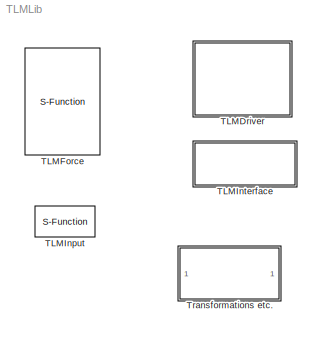
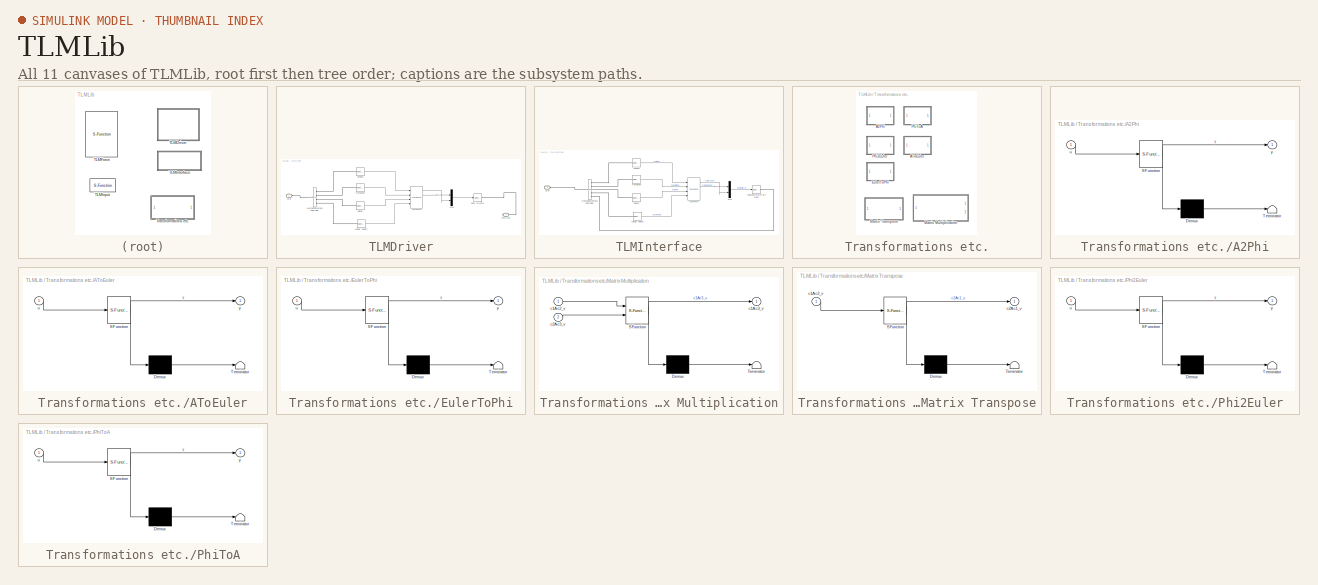
[diagram: thumbnail index - all 11 canvases of the model, root first then tree order]
MODEL TLMLib
KIND library
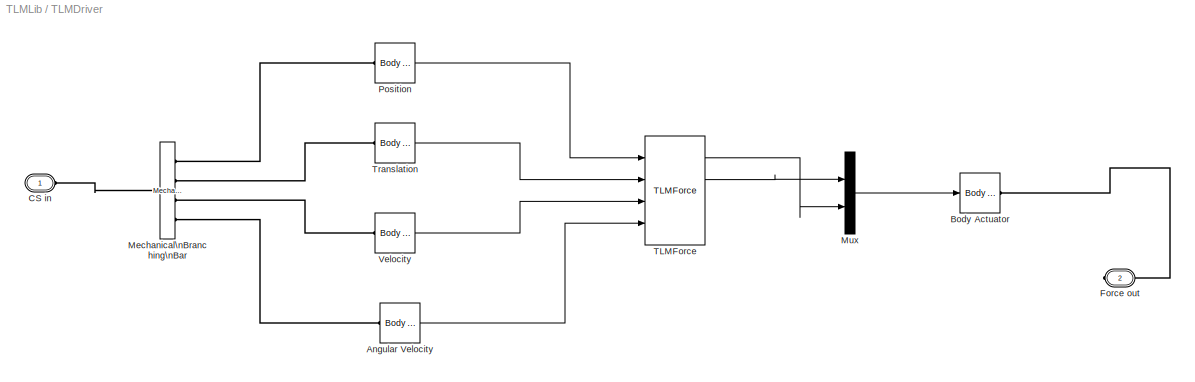
BLOCK [SubSystem] TLMDriver
  Ports = [0, 0, 0, 0, 0, 1, 1]
  RequestExecContextInheritance = off
  SID = 1
  Variant = off
BLOCK [Reference] TLMDriver/Angular Velocity  REF=mblibv1/Sensors & \nActuators/Body Sensor
  Acceleration = off
  AccelerationUnits = m/s^2
  ActiveIO = off
  Angle = on
  AngleUnits = deg
  ArcAcceleration = off
  ArcAccelerationUnits = deg/s^2
  ArcVelocity = on
  ArcVelocityUnits = rad/s
  ClassName = BodySensor
  CoordPosition = off
  CoordPositionUnits = m
  DialogClass = MechanicalSensorBlock
  FunctionWithSeparateData = off
  Muxed = on
  OutputVector = [1]
  PhysicalDomain = Mechanical
  PortType = blob
  Ports = [0, 1, 0, 0, 0, 1]
  Pose = off
  Quaternion = on
  QuaternionDDT = off
  QuaternionDT = off
  QuaternionUnits = off
  RTWMemSecDataConstants = Inherit from model
  RTWMemSecDataInternal = Inherit from model
  RTWMemSecDataParameters = Inherit from model
  RTWMemSecFuncExecute = Inherit from model
  RTWMemSecFuncInitTerm = Inherit from model
  ReferenceFrame = Absolute (World)
  SID = 2
  ShowPortLabels = on
  SourceBlock = mblibv1/Sensors & \nActuators/Body Sensor
  SourceType = msb
  SystemSampleTime = -1
  Velocity = off
  VelocityUnits = m/s
  Width = 1
BLOCK [Reference] TLMDriver/Body Actuator  REF=mblibv1/Sensors & \nActuators/Body Actuator
  AccelerationUnits = m/s^2
  ActiveIO = off
  ActuationStyle = Force
  Angle = off
  AngleUnits = deg
  ArcAccelerationUnits = deg/s^2
  ArcVelocityUnits = deg/s
  ClassName = BodyActuatorForceTorque
  CoordPosition = on
  CoordPositionUnits = m
  DialogClass = MechanicalActuatorBlock
  Force = on
  ForceUnits = N
  FunctionWithSeparateData = off
  PhysicalDomain = Mechanical
  PortType = blob
  Ports = [1, 0, 0, 0, 0, 0, 1]
  RTWMemSecDataConstants = Inherit from model
  RTWMemSecDataInternal = Inherit from model
  RTWMemSecDataParameters = Inherit from model
  RTWMemSecFuncExecute = Inherit from model
  RTWMemSecFuncInitTerm = Inherit from model
  ReferenceFrame = Absolute (World)
  SID = 3
  ShowPortLabels = on
  SourceBlock = mblibv1/Sensors & \nActuators/Body Actuator
  SourceType = msb
  SystemSampleTime = -1
  Torque = on
  TorqueUnits = N*m
  VelocityUnits = m/s
  Width = 1
BLOCK [PMIOPort] TLMDriver/CS in
  Port = 1
  SID = 10
  Side = Left
  Tag = PMCPort
BLOCK [PMIOPort] TLMDriver/Force out
  Port = 2
  SID = 11
  Side = Right
  Tag = PMCPort
BLOCK [Reference] TLMDriver/Mechanical\nBranching\nBar  REF=mblibv1/Utilities/Mechanical\nBranching\nBar
  ClassName = BranchingBar
  DialogClass = MechanicalBranchingBarBlock
  LConnTagsString = _newl0
  LeftPortType = blob
  NumSAPorts = 4
  PhysicalDomain = mechanical
  Ports = [0, 0, 0, 0, 0, 1, 4]
  RConnTagsString = __newr0|SA2|SA3|SA4
  RightPortType = blob
  SID = 4
  SourceBlock = mblibv1/Utilities/Mechanical\nBranching\nBar
  SourceType = msb
  SubClassName = Unknown
BLOCK [Mux] TLMDriver/Mux
  DisplayOption = bar
  Inputs = [3 3]
  Ports = [2, 1]
  SID = 5
BLOCK [Reference] TLMDriver/Position  REF=mblibv1/Sensors & \nActuators/Body Sensor
  Acceleration = off
  AccelerationUnits = m/s^2
  ActiveIO = off
  Angle = on
  AngleUnits = deg
  ArcAcceleration = off
  ArcAccelerationUnits = deg/s^2
  ArcVelocity = off
  ArcVelocityUnits = deg/s
  ClassName = BodySensor
  CoordPosition = on
  CoordPositionUnits = m
  DialogClass = MechanicalSensorBlock
  FunctionWithSeparateData = off
  Muxed = on
  OutputVector = [1]
  PhysicalDomain = Mechanical
  PortType = blob
  Ports = [0, 1, 0, 0, 0, 1]
  Pose = off
  Quaternion = on
  QuaternionDDT = off
  QuaternionDT = off
  QuaternionUnits = off
  RTWMemSecDataConstants = Inherit from model
  RTWMemSecDataInternal = Inherit from model
  RTWMemSecDataParameters = Inherit from model
  RTWMemSecFuncExecute = Inherit from model
  RTWMemSecFuncInitTerm = Inherit from model
  ReferenceFrame = Absolute (World)
  SID = 6
  ShowPortLabels = on
  SourceBlock = mblibv1/Sensors & \nActuators/Body Sensor
  SourceType = msb
  SystemSampleTime = -1
  Velocity = off
  VelocityUnits = m/s
  Width = 1
BLOCK [Reference] TLMDriver/TLMForce  REF=TLMLib/TLMForce
  Ports = [4, 4]
  SID = 7
  SourceBlock = TLMLib/TLMForce
  SourceType = TLMForceInterface
BLOCK [Reference] TLMDriver/Translation  REF=mblibv1/Sensors & \nActuators/Body Sensor
  Acceleration = off
  AccelerationUnits = m/s^2
  ActiveIO = off
  Angle = on
  AngleUnits = deg
  ArcAcceleration = off
  ArcAccelerationUnits = deg/s^2
  ArcVelocity = off
  ArcVelocityUnits = deg/s
  ClassName = BodySensor
  CoordPosition = off
  CoordPositionUnits = m
  DialogClass = MechanicalSensorBlock
  FunctionWithSeparateData = off
  Muxed = on
  OutputVector = [1]
  PhysicalDomain = Mechanical
  PortType = blob
  Ports = [0, 1, 0, 0, 0, 1]
  Pose = on
  Quaternion = on
  QuaternionDDT = off
  QuaternionDT = off
  QuaternionUnits = off
  RTWMemSecDataConstants = Inherit from model
  RTWMemSecDataInternal = Inherit from model
  RTWMemSecDataParameters = Inherit from model
  RTWMemSecFuncExecute = Inherit from model
  RTWMemSecFuncInitTerm = Inherit from model
  ReferenceFrame = Absolute (World)
  SID = 8
  ShowPortLabels = on
  SourceBlock = mblibv1/Sensors & \nActuators/Body Sensor
  SourceType = msb
  SystemSampleTime = -1
  Velocity = off
  VelocityUnits = m/s
  Width = 1
BLOCK [Reference] TLMDriver/Velocity  REF=mblibv1/Sensors & \nActuators/Body Sensor
  Acceleration = off
  AccelerationUnits = m/s^2
  ActiveIO = off
  Angle = on
  AngleUnits = deg
  ArcAcceleration = off
  ArcAccelerationUnits = deg/s^2
  ArcVelocity = off
  ArcVelocityUnits = deg/s
  ClassName = BodySensor
  CoordPosition = off
  CoordPositionUnits = m
  DialogClass = MechanicalSensorBlock
  FunctionWithSeparateData = off
  Muxed = on
  OutputVector = [1]
  PhysicalDomain = Mechanical
  PortType = blob
  Ports = [0, 1, 0, 0, 0, 1]
  Pose = off
  Quaternion = on
  QuaternionDDT = off
  QuaternionDT = off
  QuaternionUnits = off
  RTWMemSecDataConstants = Inherit from model
  RTWMemSecDataInternal = Inherit from model
  RTWMemSecDataParameters = Inherit from model
  RTWMemSecFuncExecute = Inherit from model
  RTWMemSecFuncInitTerm = Inherit from model
  ReferenceFrame = Absolute (World)
  SID = 9
  ShowPortLabels = on
  SourceBlock = mblibv1/Sensors & \nActuators/Body Sensor
  SourceType = msb
  SystemSampleTime = -1
  Velocity = on
  VelocityUnits = m/s
  Width = 1
BLOCK [S-Function] TLMForce
  EnableBusSupport = off
  FunctionName = tlmforce
  Ports = [4, 4]
  SFcnIsStateOwnerBlock = off
  SFunctionDeploymentMode = off
  SID = 12
BLOCK [S-Function] TLMInput
  EnableBusSupport = off
  FunctionName = tlmsignal
  Ports = [2, 2]
  SFcnIsStateOwnerBlock = off
  SFunctionDeploymentMode = off
  SID = 32
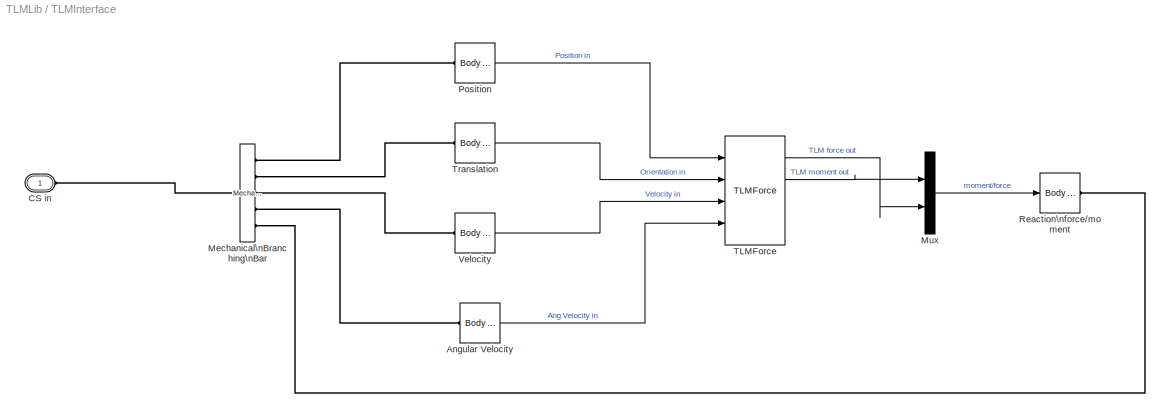
BLOCK [SubSystem] TLMInterface
  Ports = [0, 0, 0, 0, 0, 1]
  RequestExecContextInheritance = off
  SID = 13
  Variant = off
BLOCK [Reference] TLMInterface/Angular Velocity  REF=mblibv1/Sensors & \nActuators/Body Sensor
  Acceleration = off
  AccelerationUnits = m/s^2
  ActiveIO = off
  Angle = on
  AngleUnits = deg
  ArcAcceleration = off
  ArcAccelerationUnits = deg/s^2
  ArcVelocity = on
  ArcVelocityUnits = rad/s
  ClassName = BodySensor
  CoordPosition = off
  CoordPositionUnits = m
  DialogClass = MechanicalSensorBlock
  FunctionWithSeparateData = off
  Muxed = on
  OutputVector = [1]
  PhysicalDomain = Mechanical
  PortType = blob
  Ports = [0, 1, 0, 0, 0, 1]
  Pose = off
  Quaternion = on
  QuaternionDDT = off
  QuaternionDT = off
  QuaternionUnits = off
  RTWMemSecDataConstants = Inherit from model
  RTWMemSecDataInternal = Inherit from model
  RTWMemSecDataParameters = Inherit from model
  RTWMemSecFuncExecute = Inherit from model
  RTWMemSecFuncInitTerm = Inherit from model
  ReferenceFrame = Absolute (World)
  SID = 14
  ShowPortLabels = on
  SourceBlock = mblibv1/Sensors & \nActuators/Body Sensor
  SourceType = msb
  SystemSampleTime = -1
  Velocity = off
  VelocityUnits = m/s
  Width = 1
BLOCK [PMIOPort] TLMInterface/CS in
  Port = 1
  SID = 22
  Side = Left
  Tag = PMCPort
BLOCK [Reference] TLMInterface/Mechanical\nBranching\nBar  REF=mblibv1/Utilities/Mechanical\nBranching\nBar
  ClassName = BranchingBar
  DialogClass = MechanicalBranchingBarBlock
  LConnTagsString = _newl0
  LeftPortType = blob
  NumSAPorts = 5
  PhysicalDomain = mechanical
  Ports = [0, 0, 0, 0, 0, 1, 5]
  RConnTagsString = __newr0|SA2|SA3|SA4|SA5
  RightPortType = blob
  SID = 15
  SourceBlock = mblibv1/Utilities/Mechanical\nBranching\nBar
  SourceType = msb
  SubClassName = Unknown
BLOCK [Mux] TLMInterface/Mux
  DisplayOption = bar
  Inputs = [3 3]
  Ports = [2, 1]
  SID = 16
BLOCK [Reference] TLMInterface/Position  REF=mblibv1/Sensors & \nActuators/Body Sensor
  Acceleration = off
  AccelerationUnits = m/s^2
  ActiveIO = off
  Angle = on
  AngleUnits = deg
  ArcAcceleration = off
  ArcAccelerationUnits = deg/s^2
  ArcVelocity = off
  ArcVelocityUnits = deg/s
  ClassName = BodySensor
  CoordPosition = on
  CoordPositionUnits = m
  DialogClass = MechanicalSensorBlock
  FunctionWithSeparateData = off
  Muxed = on
  OutputVector = [1]
  PhysicalDomain = Mechanical
  PortType = blob
  Ports = [0, 1, 0, 0, 0, 1]
  Pose = off
  Quaternion = on
  QuaternionDDT = off
  QuaternionDT = off
  QuaternionUnits = off
  RTWMemSecDataConstants = Inherit from model
  RTWMemSecDataInternal = Inherit from model
  RTWMemSecDataParameters = Inherit from model
  RTWMemSecFuncExecute = Inherit from model
  RTWMemSecFuncInitTerm = Inherit from model
  ReferenceFrame = Absolute (World)
  SID = 17
  ShowPortLabels = on
  SourceBlock = mblibv1/Sensors & \nActuators/Body Sensor
  SourceType = msb
  SystemSampleTime = -1
  Velocity = off
  VelocityUnits = m/s
  Width = 1
BLOCK [Reference] TLMInterface/Reaction\nforce//moment  REF=mblibv1/Sensors & \nActuators/Body Actuator
  AccelerationUnits = m/s^2
  ActiveIO = off
  ActuationStyle = Force
  Angle = off
  AngleUnits = deg
  ArcAccelerationUnits = deg/s^2
  ArcVelocityUnits = deg/s
  ClassName = BodyActuatorForceTorque
  CoordPosition = on
  CoordPositionUnits = m
  DialogClass = MechanicalActuatorBlock
  Force = on
  ForceUnits = N
  FunctionWithSeparateData = off
  PhysicalDomain = Mechanical
  PortType = blob
  Ports = [1, 0, 0, 0, 0, 0, 1]
  RTWMemSecDataConstants = Inherit from model
  RTWMemSecDataInternal = Inherit from model
  RTWMemSecDataParameters = Inherit from model
  RTWMemSecFuncExecute = Inherit from model
  RTWMemSecFuncInitTerm = Inherit from model
  ReferenceFrame = Absolute (World)
  SID = 18
  ShowPortLabels = on
  SourceBlock = mblibv1/Sensors & \nActuators/Body Actuator
  SourceType = msb
  SystemSampleTime = -1
  Torque = on
  TorqueUnits = N*m
  VelocityUnits = m/s
  Width = 1
BLOCK [Reference] TLMInterface/TLMForce  REF=TLMLib/TLMForce
  Ports = [4, 4]
  SID = 19
  SourceBlock = TLMLib/TLMForce
  SourceType = TLMForceInterface
BLOCK [Reference] TLMInterface/Translation  REF=mblibv1/Sensors & \nActuators/Body Sensor
  Acceleration = off
  AccelerationUnits = m/s^2
  ActiveIO = off
  Angle = on
  AngleUnits = deg
  ArcAcceleration = off
  ArcAccelerationUnits = deg/s^2
  ArcVelocity = off
  ArcVelocityUnits = deg/s
  ClassName = BodySensor
  CoordPosition = off
  CoordPositionUnits = m
  DialogClass = MechanicalSensorBlock
  FunctionWithSeparateData = off
  Muxed = on
  OutputVector = [1]
  PhysicalDomain = Mechanical
  PortType = blob
  Ports = [0, 1, 0, 0, 0, 1]
  Pose = on
  Quaternion = on
  QuaternionDDT = off
  QuaternionDT = off
  QuaternionUnits = off
  RTWMemSecDataConstants = Inherit from model
  RTWMemSecDataInternal = Inherit from model
  RTWMemSecDataParameters = Inherit from model
  RTWMemSecFuncExecute = Inherit from model
  RTWMemSecFuncInitTerm = Inherit from model
  ReferenceFrame = Absolute (World)
  SID = 20
  ShowPortLabels = on
  SourceBlock = mblibv1/Sensors & \nActuators/Body Sensor
  SourceType = msb
  SystemSampleTime = -1
  Velocity = off
  VelocityUnits = m/s
  Width = 1
BLOCK [Reference] TLMInterface/Velocity  REF=mblibv1/Sensors & \nActuators/Body Sensor
  Acceleration = off
  AccelerationUnits = m/s^2
  ActiveIO = off
  Angle = on
  AngleUnits = deg
  ArcAcceleration = off
  ArcAccelerationUnits = deg/s^2
  ArcVelocity = off
  ArcVelocityUnits = deg/s
  ClassName = BodySensor
  CoordPosition = off
  CoordPositionUnits = m
  DialogClass = MechanicalSensorBlock
  FunctionWithSeparateData = off
  Muxed = on
  OutputVector = [1]
  PhysicalDomain = Mechanical
  PortType = blob
  Ports = [0, 1, 0, 0, 0, 1]
  Pose = off
  Quaternion = on
  QuaternionDDT = off
  QuaternionDT = off
  QuaternionUnits = off
  RTWMemSecDataConstants = Inherit from model
  RTWMemSecDataInternal = Inherit from model
  RTWMemSecDataParameters = Inherit from model
  RTWMemSecFuncExecute = Inherit from model
  RTWMemSecFuncInitTerm = Inherit from model
  ReferenceFrame = Absolute (World)
  SID = 21
  ShowPortLabels = on
  SourceBlock = mblibv1/Sensors & \nActuators/Body Sensor
  SourceType = msb
  SystemSampleTime = -1
  Velocity = on
  VelocityUnits = m/s
  Width = 1
BLOCK [SubSystem] Transformations etc.
  Ports = []
  RequestExecContextInheritance = off
  SID = 23
  Variant = off
BLOCK [SubSystem] Transformations etc./A2Phi
  ErrorFcn = Stateflow.Translate.translate
  PermitHierarchicalResolution = ExplicitOnly
  Ports = [1, 1]
  RequestExecContextInheritance = off
  SFBlockType = MATLAB Function
  SID = 24
  TreatAsAtomicUnit = on
  Variant = off
BLOCK [Demux] Transformations etc./A2Phi/ Demux 
  Outputs = 1
  Ports = [1, 1]
  SID = 24::7
BLOCK [S-Function] Transformations etc./A2Phi/ SFunction 
  EnableBusSupport = off
  FunctionName = sf_sfun
  PortCounts = [1 2]
  Ports = [1, 2]
  SFcnIsStateOwnerBlock = off
  SFunctionDeploymentMode = off
  SID = 24::6
  Tag = Stateflow S-Function TLMLib 2
BLOCK [Terminator] Transformations etc./A2Phi/ Terminator 
  SID = 24::8
BLOCK [Inport] Transformations etc./A2Phi/u
  IconDisplay = Port number
  SID = 24::1
BLOCK [Outport] Transformations etc./A2Phi/y
  IconDisplay = Port number
  SID = 24::5
BLOCK [SubSystem] Transformations etc./AToEuler
  ErrorFcn = Stateflow.Translate.translate
  PermitHierarchicalResolution = ExplicitOnly
  Ports = [1, 1]
  RequestExecContextInheritance = off
  SFBlockType = MATLAB Function
  SID = 25
  TreatAsAtomicUnit = on
  Variant = off
BLOCK [Demux] Transformations etc./AToEuler/ Demux 
  Outputs = 1
  Ports = [1, 1]
  SID = 25::7
BLOCK [S-Function] Transformations etc./AToEuler/ SFunction 
  EnableBusSupport = off
  FunctionName = sf_sfun
  PortCounts = [1 2]
  Ports = [1, 2]
  SFcnIsStateOwnerBlock = off
  SFunctionDeploymentMode = off
  SID = 25::6
  Tag = Stateflow S-Function TLMLib 5
BLOCK [Terminator] Transformations etc./AToEuler/ Terminator 
  SID = 25::8
BLOCK [Inport] Transformations etc./AToEuler/u
  IconDisplay = Port number
  SID = 25::1
BLOCK [Outport] Transformations etc./AToEuler/y
  IconDisplay = Port number
  SID = 25::5
BLOCK [SubSystem] Transformations etc./EulerToPhi
  ErrorFcn = Stateflow.Translate.translate
  PermitHierarchicalResolution = ExplicitOnly
  Ports = [1, 1]
  RequestExecContextInheritance = off
  SFBlockType = MATLAB Function
  SID = 26
  TreatAsAtomicUnit = on
  Variant = off
BLOCK [Demux] Transformations etc./EulerToPhi/ Demux 
  Outputs = 1
  Ports = [1, 1]
  SID = 26::7
BLOCK [S-Function] Transformations etc./EulerToPhi/ SFunction 
  EnableBusSupport = off
  FunctionName = sf_sfun
  PortCounts = [1 2]
  Ports = [1, 2]
  SFcnIsStateOwnerBlock = off
  SFunctionDeploymentMode = off
  SID = 26::6
  Tag = Stateflow S-Function TLMLib 6
BLOCK [Terminator] Transformations etc./EulerToPhi/ Terminator 
  SID = 26::8
BLOCK [Inport] Transformations etc./EulerToPhi/u
  IconDisplay = Port number
  SID = 26::1
BLOCK [Outport] Transformations etc./EulerToPhi/y
  IconDisplay = Port number
  SID = 26::5
BLOCK [SubSystem] Transformations etc./Matrix Multiplication
  ErrorFcn = Stateflow.Translate.translate
  PermitHierarchicalResolution = ExplicitOnly
  Ports = [2, 1]
  RequestExecContextInheritance = off
  SFBlockType = MATLAB Function
  SID = 27
  TreatAsAtomicUnit = on
  Variant = off
BLOCK [Demux] Transformations etc./Matrix Multiplication/ Demux 
  Outputs = 1
  Ports = [1, 1]
  SID = 27::8
BLOCK [S-Function] Transformations etc./Matrix Multiplication/ SFunction 
  EnableBusSupport = off
  FunctionName = sf_sfun
  PortCounts = [2 2]
  Ports = [2, 2]
  SFcnIsStateOwnerBlock = off
  SFunctionDeploymentMode = off
  SID = 27::7
  Tag = Stateflow S-Function TLMLib 7
BLOCK [Terminator] Transformations etc./Matrix Multiplication/ Terminator 
  SID = 27::9
BLOCK [Inport] Transformations etc./Matrix Multiplication/c1Ac2_v
  IconDisplay = Port number
  SID = 27::1
BLOCK [Outport] Transformations etc./Matrix Multiplication/c1Ac3_v
  IconDisplay = Port number
  SID = 27::6
BLOCK [Inport] Transformations etc./Matrix Multiplication/c2Ac3_v
  IconDisplay = Port number
  Port = 2
  SID = 27::2
BLOCK [SubSystem] Transformations etc./Matrix Transpose
  ErrorFcn = Stateflow.Translate.translate
  PermitHierarchicalResolution = ExplicitOnly
  Ports = [1, 1]
  RequestExecContextInheritance = off
  SFBlockType = MATLAB Function
  SID = 28
  TreatAsAtomicUnit = on
  Variant = off
BLOCK [Demux] Transformations etc./Matrix Transpose/ Demux 
  Outputs = 1
  Ports = [1, 1]
  SID = 28::7
BLOCK [S-Function] Transformations etc./Matrix Transpose/ SFunction 
  EnableBusSupport = off
  FunctionName = sf_sfun
  PortCounts = [1 2]
  Ports = [1, 2]
  SFcnIsStateOwnerBlock = off
  SFunctionDeploymentMode = off
  SID = 28::6
  Tag = Stateflow S-Function TLMLib 8
BLOCK [Terminator] Transformations etc./Matrix Transpose/ Terminator 
  SID = 28::8
BLOCK [Inport] Transformations etc./Matrix Transpose/c1Ac2_v
  IconDisplay = Port number
  SID = 28::1
BLOCK [Outport] Transformations etc./Matrix Transpose/c2Ac1_v
  IconDisplay = Port number
  SID = 28::5
BLOCK [SubSystem] Transformations etc./Phi2Euler
  ErrorFcn = Stateflow.Translate.translate
  PermitHierarchicalResolution = ExplicitOnly
  Ports = [1, 1]
  RequestExecContextInheritance = off
  SFBlockType = MATLAB Function
  SID = 29
  TreatAsAtomicUnit = on
  Variant = off
BLOCK [Demux] Transformations etc./Phi2Euler/ Demux 
  Outputs = 1
  Ports = [1, 1]
  SID = 29::7
BLOCK [S-Function] Transformations etc./Phi2Euler/ SFunction 
  EnableBusSupport = off
  FunctionName = sf_sfun
  PortCounts = [1 2]
  Ports = [1, 2]
  SFcnIsStateOwnerBlock = off
  SFunctionDeploymentMode = off
  SID = 29::6
  Tag = Stateflow S-Function TLMLib 4
BLOCK [Terminator] Transformations etc./Phi2Euler/ Terminator 
  SID = 29::8
BLOCK [Inport] Transformations etc./Phi2Euler/u
  IconDisplay = Port number
  SID = 29::1
BLOCK [Outport] Transformations etc./Phi2Euler/y
  IconDisplay = Port number
  SID = 29::5
BLOCK [SubSystem] Transformations etc./PhiToA
  ErrorFcn = Stateflow.Translate.translate
  PermitHierarchicalResolution = ExplicitOnly
  Ports = [1, 1]
  RequestExecContextInheritance = off
  SFBlockType = MATLAB Function
  SID = 30
  TreatAsAtomicUnit = on
  Variant = off
BLOCK [Demux] Transformations etc./PhiToA/ Demux 
  Outputs = 1
  Ports = [1, 1]
  SID = 30::7
BLOCK [S-Function] Transformations etc./PhiToA/ SFunction 
  EnableBusSupport = off
  FunctionName = sf_sfun
  PortCounts = [1 2]
  Ports = [1, 2]
  SFcnIsStateOwnerBlock = off
  SFunctionDeploymentMode = off
  SID = 30::6
  Tag = Stateflow S-Function TLMLib 9
BLOCK [Terminator] Transformations etc./PhiToA/ Terminator 
  SID = 30::8
BLOCK [Inport] Transformations etc./PhiToA/u
  IconDisplay = Port number
  SID = 30::1
BLOCK [Outport] Transformations etc./PhiToA/y
  IconDisplay = Port number
  SID = 30::5
LINE TLMDriver/Angular Velocity:1 -> TLMDriver/TLMForce:4
LINE TLMDriver/Mux:1 -> TLMDriver/Body Actuator:1
LINE TLMDriver/Position:1 -> TLMDriver/TLMForce:1
LINE TLMDriver/TLMForce:1 -> TLMDriver/Mux:2
LINE TLMDriver/TLMForce:2 -> TLMDriver/Mux:1
LINE TLMDriver/Translation:1 -> TLMDriver/TLMForce:2
LINE TLMDriver/Velocity:1 -> TLMDriver/TLMForce:3
LINE TLMInterface/Angular Velocity:1 -> TLMInterface/TLMForce:4
LINE TLMInterface/Mux:1 -> TLMInterface/Reaction\nforce//moment:1
LINE TLMInterface/Position:1 -> TLMInterface/TLMForce:1
LINE TLMInterface/TLMForce:1 -> TLMInterface/Mux:2
LINE TLMInterface/TLMForce:2 -> TLMInterface/Mux:1
LINE TLMInterface/Translation:1 -> TLMInterface/TLMForce:2
LINE TLMInterface/Velocity:1 -> TLMInterface/TLMForce:3
LINE Transformations etc./A2Phi/ Demux :1 -> Transformations etc./A2Phi/ Terminator :1
LINE Transformations etc./A2Phi/ SFunction :1 -> Transformations etc./A2Phi/ Demux :1
LINE Transformations etc./A2Phi/ SFunction :2 -> Transformations etc./A2Phi/y:1
LINE Transformations etc./A2Phi/u:1 -> Transformations etc./A2Phi/ SFunction :1
LINE Transformations etc./AToEuler/ Demux :1 -> Transformations etc./AToEuler/ Terminator :1
LINE Transformations etc./AToEuler/ SFunction :1 -> Transformations etc./AToEuler/ Demux :1
LINE Transformations etc./AToEuler/ SFunction :2 -> Transformations etc./AToEuler/y:1
LINE Transformations etc./AToEuler/u:1 -> Transformations etc./AToEuler/ SFunction :1
LINE Transformations etc./EulerToPhi/ Demux :1 -> Transformations etc./EulerToPhi/ Terminator :1
LINE Transformations etc./EulerToPhi/ SFunction :1 -> Transformations etc./EulerToPhi/ Demux :1
LINE Transformations etc./EulerToPhi/ SFunction :2 -> Transformations etc./EulerToPhi/y:1
LINE Transformations etc./EulerToPhi/u:1 -> Transformations etc./EulerToPhi/ SFunction :1
LINE Transformations etc./Matrix Multiplication/ Demux :1 -> Transformations etc./Matrix Multiplication/ Terminator :1
LINE Transformations etc./Matrix Multiplication/ SFunction :1 -> Transformations etc./Matrix Multiplication/ Demux :1
LINE Transformations etc./Matrix Multiplication/ SFunction :2 -> Transformations etc./Matrix Multiplication/c1Ac3_v:1
LINE Transformations etc./Matrix Multiplication/c1Ac2_v:1 -> Transformations etc./Matrix Multiplication/ SFunction :1
LINE Transformations etc./Matrix Multiplication/c2Ac3_v:1 -> Transformations etc./Matrix Multiplication/ SFunction :2
LINE Transformations etc./Matrix Transpose/ Demux :1 -> Transformations etc./Matrix Transpose/ Terminator :1
LINE Transformations etc./Matrix Transpose/ SFunction :1 -> Transformations etc./Matrix Transpose/ Demux :1
LINE Transformations etc./Matrix Transpose/ SFunction :2 -> Transformations etc./Matrix Transpose/c2Ac1_v:1
LINE Transformations etc./Matrix Transpose/c1Ac2_v:1 -> Transformations etc./Matrix Transpose/ SFunction :1
LINE Transformations etc./Phi2Euler/ Demux :1 -> Transformations etc./Phi2Euler/ Terminator :1
LINE Transformations etc./Phi2Euler/ SFunction :1 -> Transformations etc./Phi2Euler/ Demux :1
LINE Transformations etc./Phi2Euler/ SFunction :2 -> Transformations etc./Phi2Euler/y:1
LINE Transformations etc./Phi2Euler/u:1 -> Transformations etc./Phi2Euler/ SFunction :1
LINE Transformations etc./PhiToA/ Demux :1 -> Transformations etc./PhiToA/ Terminator :1
LINE Transformations etc./PhiToA/ SFunction :1 -> Transformations etc./PhiToA/ Demux :1
LINE Transformations etc./PhiToA/ SFunction :2 -> Transformations etc./PhiToA/y:1
LINE Transformations etc./PhiToA/u:1 -> Transformations etc./PhiToA/ SFunction :1
PLINE TLMDriver/Angular Velocity:LConn1 -- TLMDriver/Mechanical\nBranching\nBar:RConn4
PLINE TLMDriver/Body Actuator:RConn1 -- TLMDriver/Force out:RConn1
PLINE TLMDriver/CS in:RConn1 -- TLMDriver/Mechanical\nBranching\nBar:LConn1
PLINE TLMDriver/Mechanical\nBranching\nBar:RConn1 -- TLMDriver/Position:LConn1
PLINE TLMDriver/Mechanical\nBranching\nBar:RConn2 -- TLMDriver/Translation:LConn1
PLINE TLMDriver/Mechanical\nBranching\nBar:RConn3 -- TLMDriver/Velocity:LConn1
PLINE TLMInterface/Angular Velocity:LConn1 -- TLMInterface/Mechanical\nBranching\nBar:RConn4
PLINE TLMInterface/CS in:RConn1 -- TLMInterface/Mechanical\nBranching\nBar:LConn1
PLINE TLMInterface/Mechanical\nBranching\nBar:RConn1 -- TLMInterface/Position:LConn1
PLINE TLMInterface/Mechanical\nBranching\nBar:RConn2 -- TLMInterface/Translation:LConn1
PLINE TLMInterface/Mechanical\nBranching\nBar:RConn3 -- TLMInterface/Velocity:LConn1
PLINE TLMInterface/Mechanical\nBranching\nBar:RConn5 -- TLMInterface/Reaction\nforce//moment:RConn1
CHART Transformations etc./A2Phi states=1 transitions=1
  STATE_LABEL 'eML_blk_kernel()'
CHART Transformations etc./Phi2Euler states=1 transitions=1
  STATE_LABEL 'eML_blk_kernel()'
CHART Transformations etc./AToEuler states=1 transitions=1
  STATE_LABEL 'eML_blk_kernel()'
CHART Transformations etc./EulerToPhi states=1 transitions=1
  STATE_LABEL 'eML_blk_kernel()'
CHART Transformations etc./Matrix Multiplication states=1 transitions=1
  STATE_LABEL 'eML_blk_kernel()'
CHART Transformations etc./Matrix Transpose states=1 transitions=1
  STATE_LABEL 'eML_blk_kernel()'
CHART Transformations etc./PhiToA states=1 transitions=1
  STATE_LABEL 'eML_blk_kernel()'
